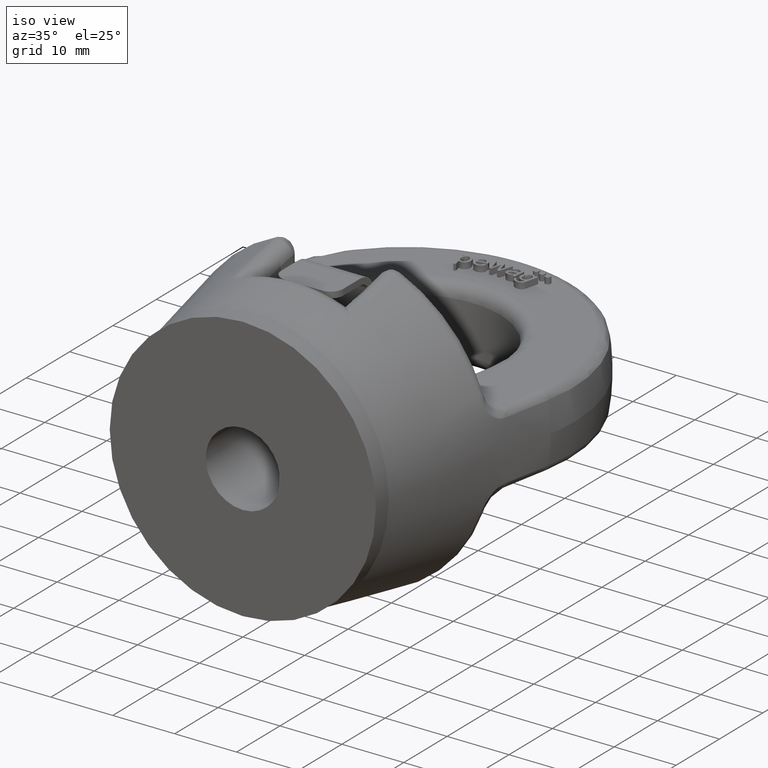
[diagram: clean part render]
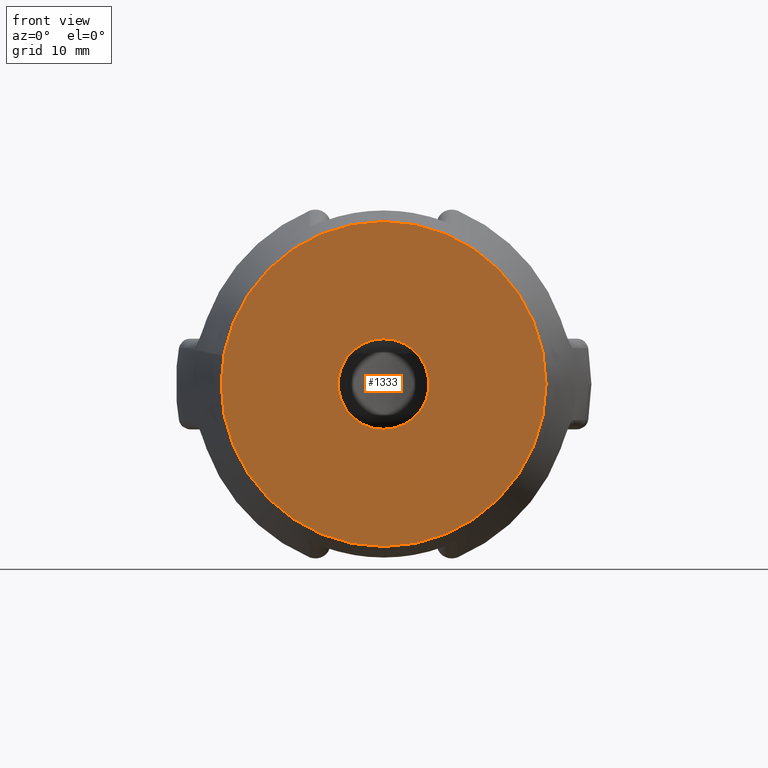
[diagram: tour spotlight — one face highlighted and labeled with its STEP entity id]
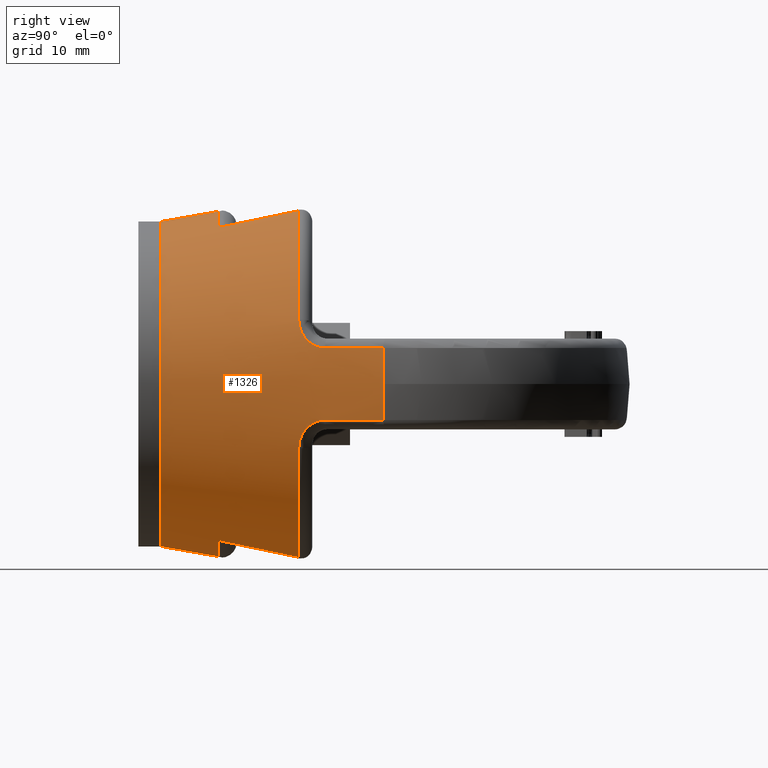
[diagram: tour spotlight — one face highlighted and labeled with its STEP entity id]
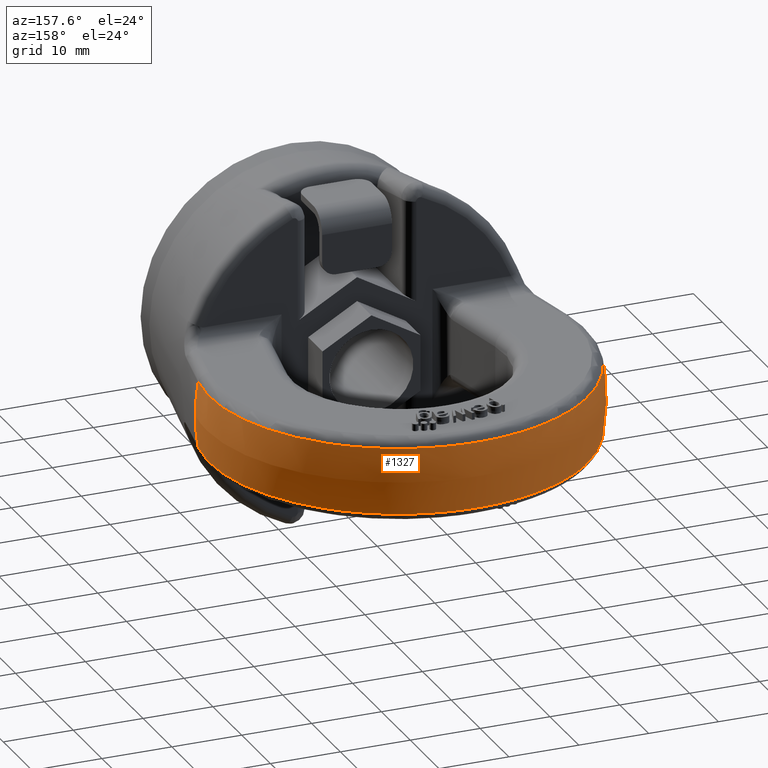
[diagram: tour spotlight — one face highlighted and labeled with its STEP entity id]
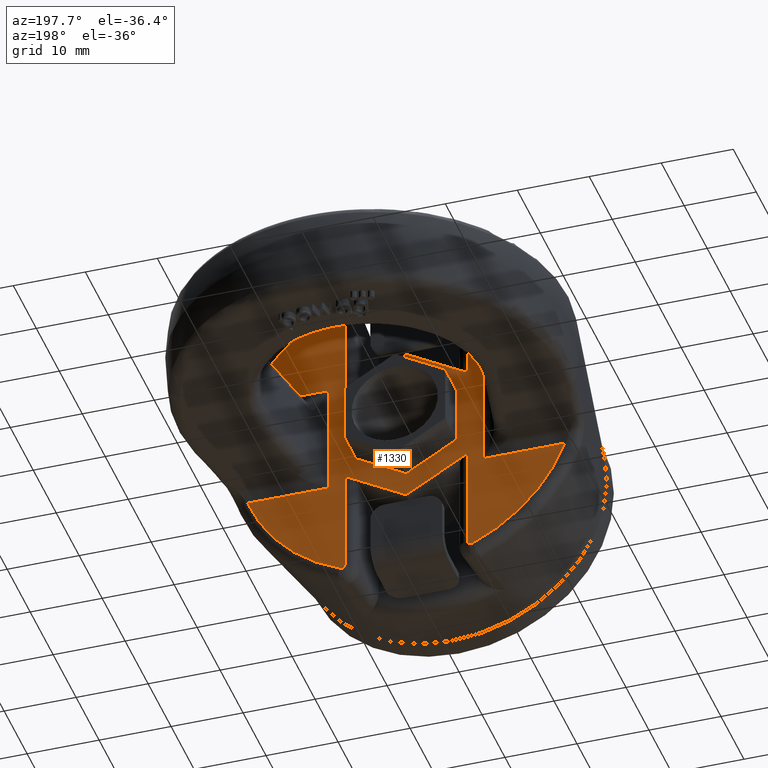
[diagram: tour spotlight — one face highlighted and labeled with its STEP entity id]
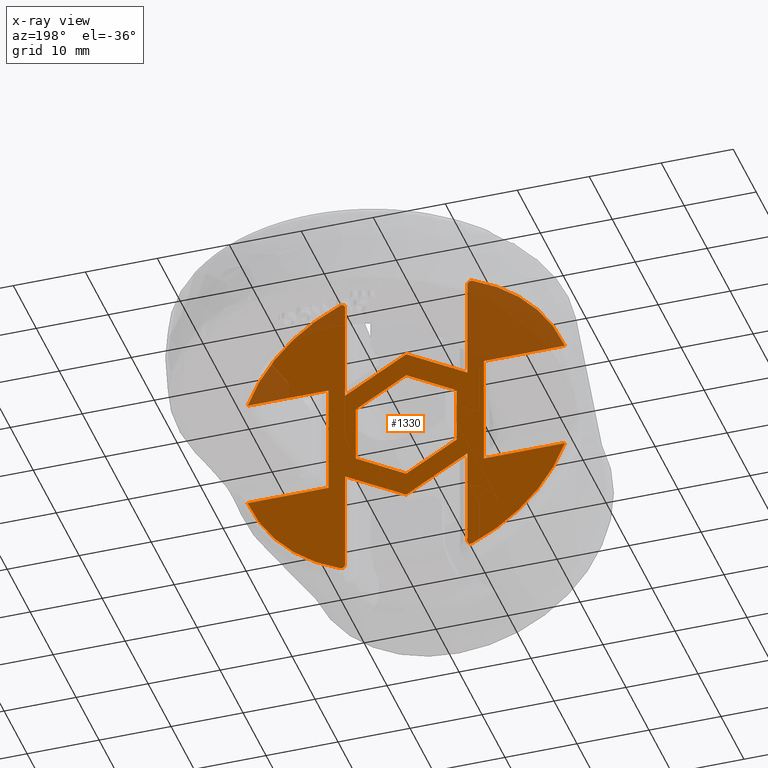
[diagram: x-ray of the same camera — body ghosted, this tour face saturated]
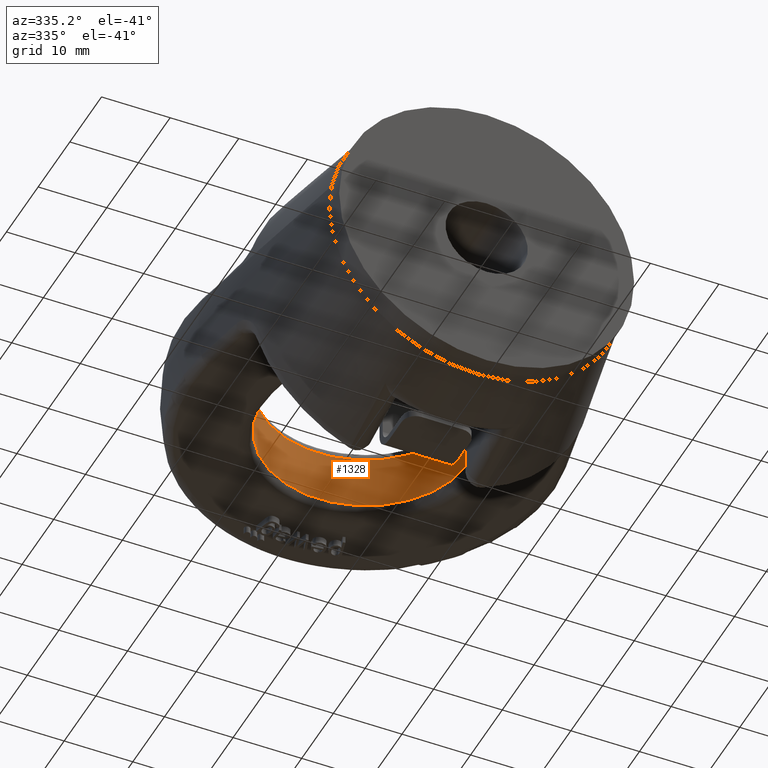
[diagram: tour spotlight — one face highlighted and labeled with its STEP entity id]
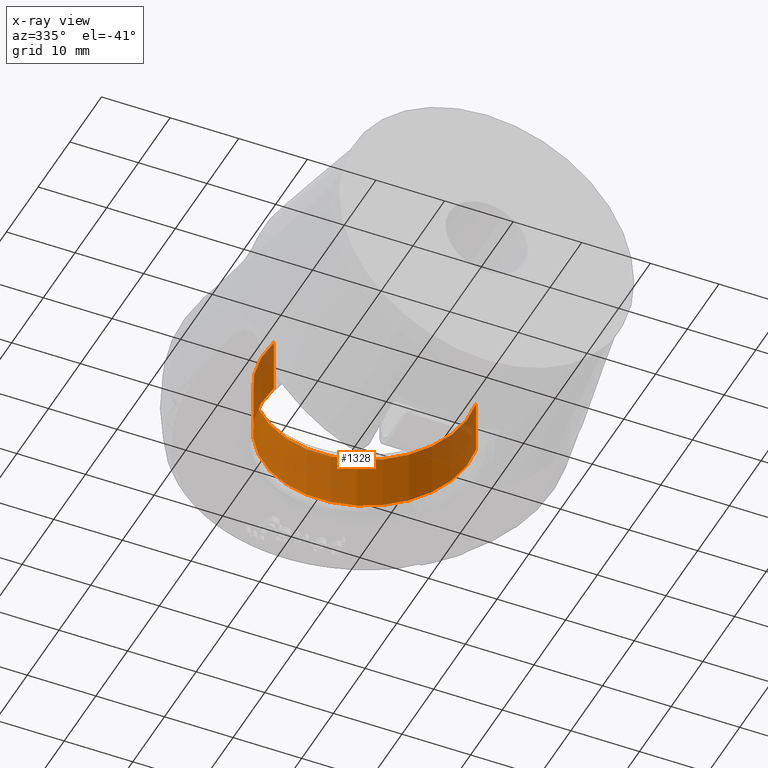
[diagram: x-ray of the same camera — body ghosted, this tour face saturated]
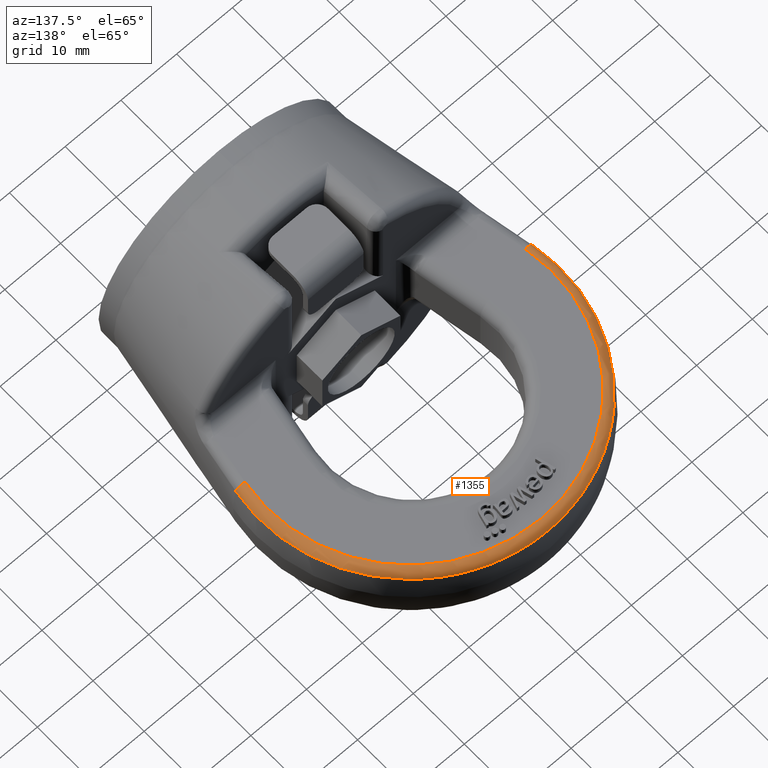
[diagram: tour spotlight — one face highlighted and labeled with its STEP entity id]
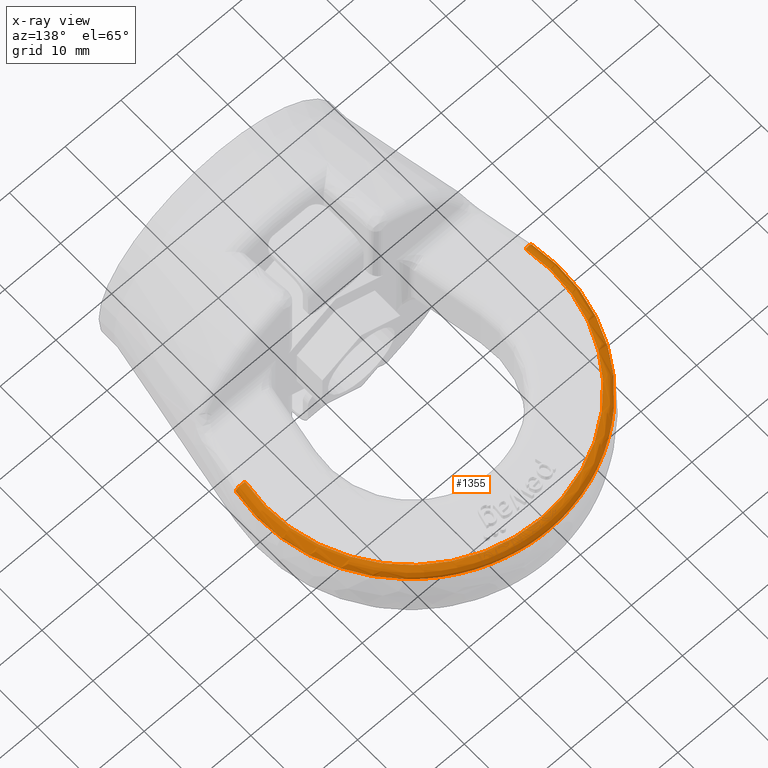
[diagram: x-ray of the same camera — body ghosted, this tour face saturated]
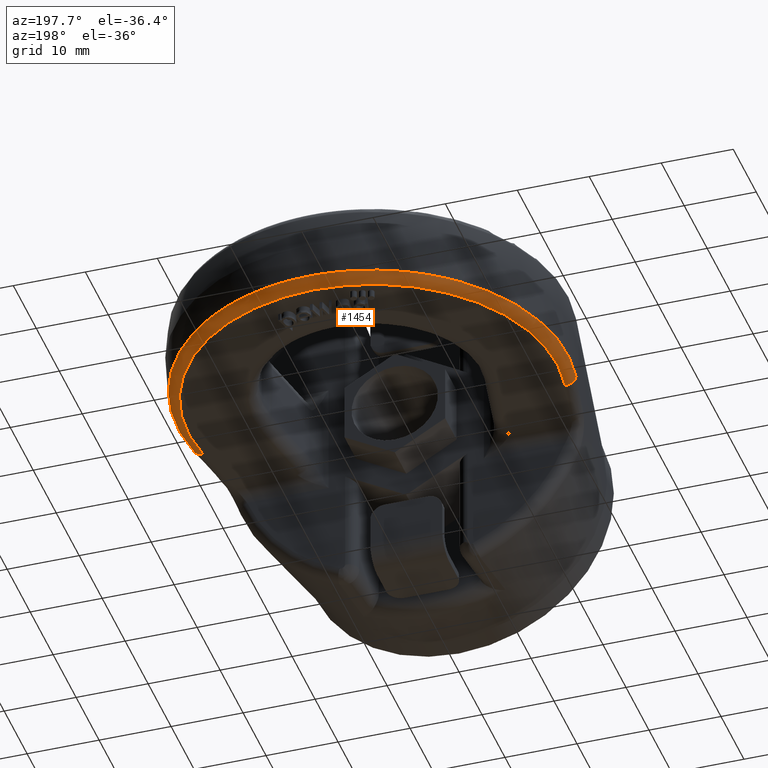
[diagram: tour spotlight — one face highlighted and labeled with its STEP entity id]
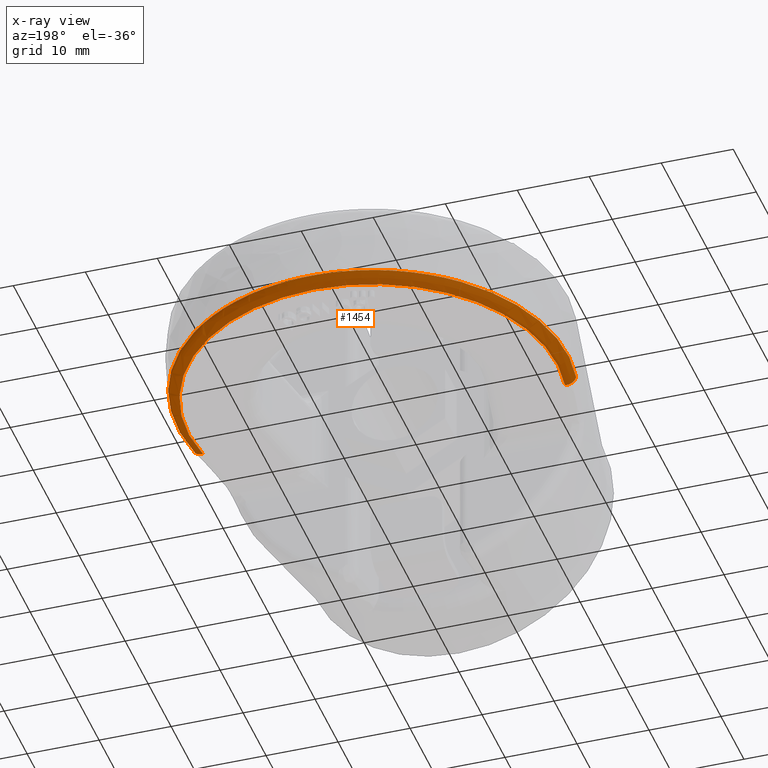
[diagram: x-ray of the same camera — body ghosted, this tour face saturated]
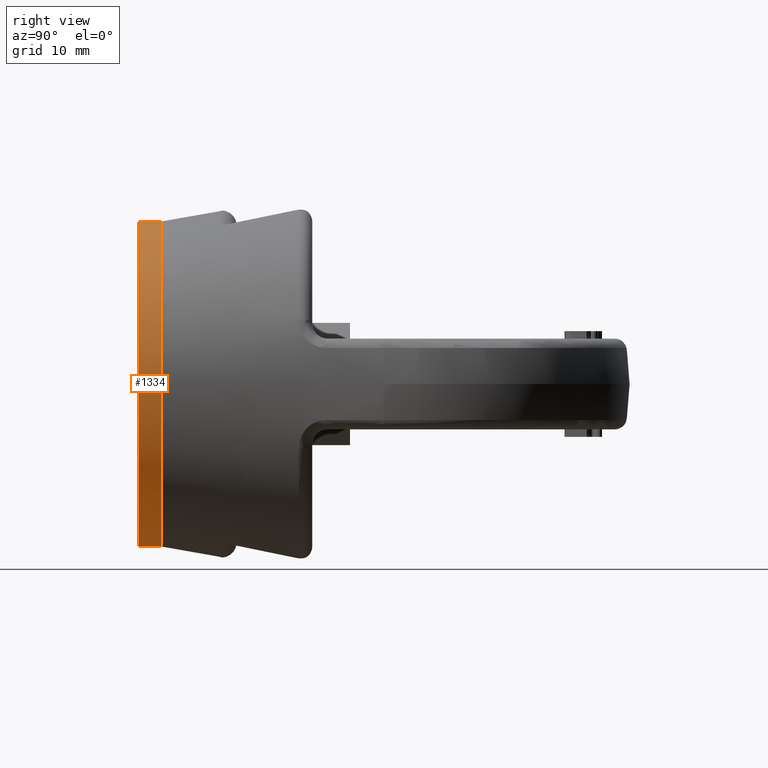
[diagram: tour spotlight — one face highlighted and labeled with its STEP entity id]
A machine part: a face-by-face anatomy tour. The part has 240 B-rep faces; the first image is the clean iso view, then the 8 largest visible faces are spotlighted one at a time (largest first), each with its STEP entity span.

Face 1 — front view, entity #1333. In plain terms, the highlighted planar face has unit normal (0, 1, 0).
Definition (entity closure, byte-faithful):
#1333=ADVANCED_FACE('',(#1783,#1784),#1570,.F.);
#1570=PLANE('',#5140);
#1699=CIRCLE('',#5138,6.);
#1700=CIRCLE('',#5139,21.5000000000001);
#1783=FACE_BOUND('',#1848,.T.);
#1784=FACE_BOUND('',#1849,.T.);
#1848=EDGE_LOOP('',(#2837));
#1849=EDGE_LOOP('',(#2838));
#2837=ORIENTED_EDGE('',*,*,#4387,.T.);
#2838=ORIENTED_EDGE('',*,*,#4388,.F.);
#3997=VERTEX_POINT('',#6888);
#3998=VERTEX_POINT('',#6890);
#4387=EDGE_CURVE('',#3997,#3997,#1699,.T.);
#4388=EDGE_CURVE('',#3998,#3998,#1700,.T.);
#5138=AXIS2_PLACEMENT_3D('',#6887,#5514,#5515);
#5139=AXIS2_PLACEMENT_3D('',#6889,#5516,#5517);
#5140=AXIS2_PLACEMENT_3D('',#6891,#5518,#5519);
#5514=DIRECTION('',(0.,1.,0.));
#5515=DIRECTION('',(0.,0.,1.));
#5516=DIRECTION('',(0.,1.,0.));
#5517=DIRECTION('',(0.,0.,1.));
#5518=DIRECTION('',(0.,1.,0.));
#5519=DIRECTION('',(0.,0.,1.));
#6887=CARTESIAN_POINT('',(0.,0.,0.));
#6888=CARTESIAN_POINT('',(0.,0.,6.));
#6889=CARTESIAN_POINT('',(-1.27403500852703E-13,0.,1.37966262793516E-14));
#6890=CARTESIAN_POINT('',(-1.27403500852703E-13,0.,21.5000000000001));
#6891=CARTESIAN_POINT('',(0.,0.,0.));

Face 2 — right view, entity #1326. In plain terms, the highlighted conical surface has half-angle 10.639 deg.
Definition (entity closure, byte-faithful):
#1104=CONICAL_SURFACE('',#5119,20.936432332518,10.6393524298015);
#1326=ADVANCED_FACE('',(#1779,#1780),#1104,.T.);
#1682=CIRCLE('',#5110,27.02724128799);
#1683=CIRCLE('',#5111,24.9233092101248);
#1684=CIRCLE('',#5112,22.9334807941546);
#1685=CIRCLE('',#5113,24.9233092101248);
#1686=CIRCLE('',#5114,27.02724128799);
#1687=CIRCLE('',#5115,24.9233092101248);
#1688=CIRCLE('',#5116,22.9334807941546);
#1689=CIRCLE('',#5117,24.9233092101248);
#1690=CIRCLE('',#5118,21.5000000000001);
#1779=FACE_BOUND('',#1839,.T.);
#1780=FACE_BOUND('',#1840,.T.);
#1839=EDGE_LOOP('',(#2764,#2765,#2766,#2767,#2768,#2769,#2770,#2771,#2772,
#2773,#2774,#2775,#2776,#2777,#2778,#2779,#2780,#2781,#2782,#2783));
#1840=EDGE_LOOP('',(#2784));
#2764=ORIENTED_EDGE('',*,*,#4319,.T.);
#2765=ORIENTED_EDGE('',*,*,#4320,.T.);
#2766=ORIENTED_EDGE('',*,*,#4321,.T.);
#2767=ORIENTED_EDGE('',*,*,#4322,.T.);
#2768=ORIENTED_EDGE('',*,*,#4323,.T.);
#2769=ORIENTED_EDGE('',*,*,#4324,.T.);
#2770=ORIENTED_EDGE('',*,*,#4325,.T.);
#2771=ORIENTED_EDGE('',*,*,#4326,.T.);
#2772=ORIENTED_EDGE('',*,*,#4327,.T.);
#2773=ORIENTED_EDGE('',*,*,#4328,.T.);
#2774=ORIENTED_EDGE('',*,*,#4329,.T.);
#2775=ORIENTED_EDGE('',*,*,#4330,.T.);
#2776=ORIENTED_EDGE('',*,*,#4331,.T.);
#2777=ORIENTED_EDGE('',*,*,#4332,.T.);
#2778=ORIENTED_EDGE('',*,*,#4333,.T.);
#2779=ORIENTED_EDGE('',*,*,#4334,.T.);
#2780=ORIENTED_EDGE('',*,*,#4335,.T.);
#2781=ORIENTED_EDGE('',*,*,#4336,.T.);
#2782=ORIENTED_EDGE('',*,*,#4337,.T.);
#2783=ORIENTED_EDGE('',*,*,#4338,.T.);
#2784=ORIENTED_EDGE('',*,*,#4339,.F.);
#3934=VERTEX_POINT('',#6564);
#3935=VERTEX_POINT('',#6565);
#3936=VERTEX_POINT('',#6573);
#3937=VERTEX_POINT('',#6590);
#3938=VERTEX_POINT('',#6592);
#3939=VERTEX_POINT('',#6600);
#3940=VERTEX_POINT('',#6602);
#3941=VERTEX_POINT('',#6610);
#3942=VERTEX_POINT('',#6612);
#3943=VERTEX_POINT('',#6629);
#3944=VERTEX_POINT('',#6637);
#3945=VERTEX_POINT('',#6639);
#3946=VERTEX_POINT('',#6647);
#3947=VERTEX_POINT('',#6664);
#3948=VERTEX_POINT('',#6666);
#3949=VERTEX_POINT('',#6674);
#3950=VERTEX_POINT('',#6676);
#3951=VERTEX_POINT('',#6684);
#3952=VERTEX_POINT('',#6686);
#3953=VERTEX_POINT('',#6703);
#3954=VERTEX_POINT('',#6712);
#4319=EDGE_CURVE('',#3934,#3935,#1682,.T.);
#4320=EDGE_CURVE('',#3935,#3936,#4866,.T.);
#4321=EDGE_CURVE('',#3936,#3937,#4867,.T.);
#4322=EDGE_CURVE('',#3937,#3938,#1683,.T.);
#4323=EDGE_CURVE('',#3938,#3939,#4868,.T.);
#4324=EDGE_CURVE('',#3939,#3940,#1684,.T.);
#4325=EDGE_CURVE('',#3940,#3941,#4869,.T.);
#4326=EDGE_CURVE('',#3941,#3942,#1685,.T.);
#4327=EDGE_CURVE('',#3942,#3943,#4870,.T.);
#4328=EDGE_CURVE('',#3943,#3944,#4871,.T.);
#4329=EDGE_CURVE('',#3944,#3945,#1686,.T.);
#4330=EDGE_CURVE('',#3945,#3946,#4872,.T.);
#4331=EDGE_CURVE('',#3946,#3947,#4873,.T.);
#4332=EDGE_CURVE('',#3947,#3948,#1687,.T.);
#4333=EDGE_CURVE('',#3948,#3949,#4874,.T.);
#4334=EDGE_CURVE('',#3949,#3950,#1688,.T.);
#4335=EDGE_CURVE('',#3950,#3951,#4875,.T.);
#4336=EDGE_CURVE('',#3951,#3952,#1689,.T.);
#4337=EDGE_CURVE('',#3952,#3953,#4876,.T.);
#4338=EDGE_CURVE('',#3953,#3934,#4877,.T.);
#4339=EDGE_CURVE('',#3954,#3954,#1690,.T.);
#4866=B_SPLINE_CURVE_WITH_KNOTS('',3,(#6566,#6567,#6568,#6569,#6570,#6571,
#6572),.UNSPECIFIED.,.F.,.F.,(4,3,4),(0.,0.382678019397536,1.),
 .UNSPECIFIED.);
#4867=B_SPLINE_CURVE_WITH_KNOTS('',3,(#6574,#6575,#6576,#6577,#6578,#6579,
#6580,#6581,#6582,#6583,#6584,#6585,#6586,#6587,#6588,#6589),
 .UNSPECIFIED.,.F.,.F.,(4,3,3,3,3,4),(0.,0.0842091804635923,0.3009179089864,
0.52750237567707,0.762399147508869,1.),.UNSPECIFIED.);
#4868=B_SPLINE_CURVE_WITH_KNOTS('',3,(#6593,#6594,#6595,#6596,#6597,#6598,
#6599),.UNSPECIFIED.,.F.,.F.,(4,3,4),(0.,0.34127782446797,1.),
 .UNSPECIFIED.);
#4869=B_SPLINE_CURVE_WITH_KNOTS('',3,(#6603,#6604,#6605,#6606,#6607,#6608,
#6609),.UNSPECIFIED.,.F.,.F.,(4,3,4),(0.,0.658722175532028,1.),
 .UNSPECIFIED.);
#4870=B_SPLINE_CURVE_WITH_KNOTS('',3,(#6613,#6614,#6615,#6616,#6617,#6618,
#6619,#6620,#6621,#6622,#6623,#6624,#6625,#6626,#6627,#6628),
 .UNSPECIFIED.,.F.,.F.,(4,3,3,3,3,4),(0.,0.131475323259483,0.360761867561333,
0.580559920134442,0.791571791654308,1.),.UNSPECIFIED.);
#4871=B_SPLINE_CURVE_WITH_KNOTS('',3,(#6630,#6631,#6632,#6633,#6634,#6635,
#6636),.UNSPECIFIED.,.F.,.F.,(4,3,4),(0.,0.382678020142017,1.),
 .UNSPECIFIED.);
#4872=B_SPLINE_CURVE_WITH_KNOTS('',3,(#6640,#6641,#6642,#6643,#6644,#6645,
#6646),.UNSPECIFIED.,.F.,.F.,(4,3,4),(0.,0.382678019397536,1.),
 .UNSPECIFIED.);
#4873=B_SPLINE_CURVE_WITH_KNOTS('',3,(#6648,#6649,#6650,#6651,#6652,#6653,
#6654,#6655,#6656,#6657,#6658,#6659,#6660,#6661,#6662,#6663),
 .UNSPECIFIED.,.F.,.F.,(4,3,3,3,3,4),(0.,0.0842091804635923,0.3009179089864,
0.52750237567707,0.762399147508869,1.),.UNSPECIFIED.);
#4874=B_SPLINE_CURVE_WITH_KNOTS('',3,(#6667,#6668,#6669,#6670,#6671,#6672,
#6673),.UNSPECIFIED.,.F.,.F.,(4,3,4),(0.,0.34127782446797,1.),
 .UNSPECIFIED.);
#4875=B_SPLINE_CURVE_WITH_KNOTS('',3,(#6677,#6678,#6679,#6680,#6681,#6682,
#6683),.UNSPECIFIED.,.F.,.F.,(4,3,4),(0.,0.658722175532028,1.),
 .UNSPECIFIED.);
#4876=B_SPLINE_CURVE_WITH_KNOTS('',3,(#6687,#6688,#6689,#6690,#6691,#6692,
#6693,#6694,#6695,#6696,#6697,#6698,#6699,#6700,#6701,#6702),
 .UNSPECIFIED.,.F.,.F.,(4,3,3,3,3,4),(0.,0.131475323259483,0.360761867561333,
0.580559920134442,0.791571791654308,1.),.UNSPECIFIED.);
#4877=B_SPLINE_CURVE_WITH_KNOTS('',3,(#6704,#6705,#6706,#6707,#6708,#6709,
#6710),.UNSPECIFIED.,.F.,.F.,(4,3,4),(0.,0.382678020142017,1.),
 .UNSPECIFIED.);
#5110=AXIS2_PLACEMENT_3D('',#6563,#5428,#5429);
#5111=AXIS2_PLACEMENT_3D('',#6591,#5430,#5431);
#5112=AXIS2_PLACEMENT_3D('',#6601,#5432,#5433);
#5113=AXIS2_PLACEMENT_3D('',#6611,#5434,#5435);
#5114=AXIS2_PLACEMENT_3D('',#6638,#5436,#5437);
#5115=AXIS2_PLACEMENT_3D('',#6665,#5438,#5439);
#5116=AXIS2_PLACEMENT_3D('',#6675,#5440,#5441);
#5117=AXIS2_PLACEMENT_3D('',#6685,#5442,#5443);
#5118=AXIS2_PLACEMENT_3D('',#6711,#5444,#5445);
#5119=AXIS2_PLACEMENT_3D('',#6713,#5446,#5447);
#5428=DIRECTION('',(-1.96005385927235E-15,-1.,0.));
#5429=DIRECTION('',(1.,-2.05389631297387E-15,0.));
#5430=DIRECTION('',(6.37234096263326E-16,-1.,1.49298260112514E-30));
#5431=DIRECTION('',(-1.,-6.96024537252098E-16,-2.34291072916505E-15));
#5432=DIRECTION('',(-1.23908819712629E-16,-1.,-2.90307303142896E-31));
#5433=DIRECTION('',(-1.,1.51283051321103E-16,-2.34291072916505E-15));
#5434=DIRECTION('',(6.37234096263326E-16,-1.,1.49298260112514E-30));
#5435=DIRECTION('',(-1.,-6.96024537252098E-16,-2.34291072916505E-15));
#5436=DIRECTION('',(-1.96005385927235E-15,-1.,0.));
#5437=DIRECTION('',(1.,-2.05389631297387E-15,0.));
#5438=DIRECTION('',(-6.37234096263326E-16,-1.,0.));
#5439=DIRECTION('',(1.,-6.96024537252098E-16,0.));
#5440=DIRECTION('',(1.23908819712629E-16,-1.,0.));
#5441=DIRECTION('',(1.,1.51283051321103E-16,0.));
#5442=DIRECTION('',(-6.37234096263326E-16,-1.,0.));
#5443=DIRECTION('',(1.,-6.96024537252098E-16,0.));
#5444=DIRECTION('',(0.,-1.,0.));
#5445=DIRECTION('',(0.,0.,1.));
#5446=DIRECTION('',(1.96005385927235E-15,1.,0.));
#5447=DIRECTION('',(-1.,1.92754141315332E-15,0.));
#6563=CARTESIAN_POINT('',(-6.38531184153958E-14,32.4227735562836,0.));
#6564=CARTESIAN_POINT('',(-26.6048460440907,32.4227735562836,4.75961538461541));
#6565=CARTESIAN_POINT('',(-26.6048460440905,32.4227735562835,-4.75961538461545));
#6566=CARTESIAN_POINT('',(-26.6048460440905,32.4227735562835,-4.75961538461545));
#6567=CARTESIAN_POINT('',(-26.417067359261,31.4405639763957,-4.7614900209571));
#6568=CARTESIAN_POINT('',(-26.2292154171264,30.4583684750334,-4.76340521983318));
#6569=CARTESIAN_POINT('',(-26.0412848433138,29.4761881091049,-4.76536373256603));
#6570=CARTESIAN_POINT('',(-25.7381222176403,27.8917712014177,-4.76852313260649));
#6571=CARTESIAN_POINT('',(-25.434755181654,26.307393607992,-4.77179514673872));
#6572=CARTESIAN_POINT('',(-25.1311581420737,24.7230603757973,-4.77519274887629));
#6573=CARTESIAN_POINT('',(-25.1311581420737,24.7230603757973,-4.77519274887629));
#6574=CARTESIAN_POINT('',(-25.1311581420737,24.7230603757973,-4.77519274887629));
#6575=CARTESIAN_POINT('',(-25.0995717930953,24.5582257567266,-4.77554623666706));
#6576=CARTESIAN_POINT('',(-25.0656330657141,24.3934083264606,-4.78833228549174));
#6577=CARTESIAN_POINT('',(-25.0298617237991,24.2313119244773,-4.81310003874578));
#6578=CARTESIAN_POINT('',(-24.9391055784978,23.8200540900308,-4.87593877201028));
#6579=CARTESIAN_POINT('',(-24.8343926505506,23.4177064878508,-5.01944740523283));
#6580=CARTESIAN_POINT('',(-24.7227085318757,23.0615194538399,-5.22432748025299));
#6581=CARTESIAN_POINT('',(-24.6058951927083,22.6889741241673,-5.43861690632292));
#6582=CARTESIAN_POINT('',(-24.4775575581374,22.3550454694157,-5.72616297651062));
#6583=CARTESIAN_POINT('',(-24.3437188085512,22.0858246769949,-6.05473974232224));
#6584=CARTESIAN_POINT('',(-24.2048792158383,21.8065445336497,-6.39559367648769));
#6585=CARTESIAN_POINT('',(-24.0558463603936,21.5882894345567,-6.79000628049788));
#6586=CARTESIAN_POINT('',(-23.9035190514857,21.4439365747384,-7.20160545230321));
#6587=CARTESIAN_POINT('',(-23.7493277767971,21.2978173291486,-7.61824119159673));
#6588=CARTESIAN_POINT('',(-23.5875511778051,21.2230603757973,-8.06334189652732));
#6589=CARTESIAN_POINT('',(-23.4280002565763,21.2230603757973,-8.50294925078054));
#6590=CARTESIAN_POINT('',(-23.4280002565763,21.2230603757973,-8.50294925078054));
#6591=CARTESIAN_POINT('',(8.58051594575514E-14,21.2230603757973,2.01033828710815E-28));
#6592=CARTESIAN_POINT('',(-9.77057215483511,21.2230603757973,-22.928306997043));
#6593=CARTESIAN_POINT('',(-9.77057215483511,21.2230603757973,-22.928306997043));
#6594=CARTESIAN_POINT('',(-9.77817334054034,20.0175486590907,-22.6789007834092));
#6595=CARTESIAN_POINT('',(-9.78599824172192,18.8121992047466,-22.4287153901405));
#6596=CARTESIAN_POINT('',(-9.79406771798116,17.607032894456,-22.1776600483657));
#6597=CARTESIAN_POINT('',(-9.80964311959758,15.2808659048881,-21.6930824065874));
#6598=CARTESIAN_POINT('',(-9.82612706033226,12.9553731248613,-21.2052788562981));
#6599=CARTESIAN_POINT('',(-9.84369865095256,10.6307471677297,-20.7134289340295));
#6600=CARTESIAN_POINT('',(-9.84369865095256,10.6307471677297,-20.7134289340295));
#6601=CARTESIAN_POINT('',(1.06566663839646E-13,10.6307471677297,2.49676180081231E-28));
#6602=CARTESIAN_POINT('',(9.8436986509527,10.6307471677297,-20.7134289340295));
#6603=CARTESIAN_POINT('',(9.8436986509527,10.6307471677297,-20.7134289340295));
#6604=CARTESIAN_POINT('',(9.8261270603324,12.9553731248613,-21.2052788562981));
#6605=CARTESIAN_POINT('',(9.80964311959765,15.2808659048881,-21.6930824065875));
#6606=CARTESIAN_POINT('',(9.79406771798124,17.607032894456,-22.1776600483657));
#6607=CARTESIAN_POINT('',(9.785998241722,18.8121992047466,-22.4287153901405));
#6608=CARTESIAN_POINT('',(9.77817334054044,20.0175486590907,-22.6789007834092));
#6609=CARTESIAN_POINT('',(9.7705721548352,21.2230603757973,-22.9283069970431));
#6610=CARTESIAN_POINT('',(9.7705721548352,21.2230603757973,-22.9283069970431));
#6611=CARTESIAN_POINT('',(8.58051594575514E-14,21.2230603757973,2.01033828710815E-28));
#6612=CARTESIAN_POINT('',(23.4280002565765,21.2230603757973,-8.50294925078043));
#6613=CARTESIAN_POINT('',(23.4280002565765,21.2230603757973,-8.50294925078043));
#6614=CARTESIAN_POINT('',(23.5170171981704,21.2230603757973,-8.25768271219562));
#6615=CARTESIAN_POINT('',(23.6065186362908,21.246012577626,-8.01152247552628));
#6616=CARTESIAN_POINT('',(23.6946626375297,21.2915808066786,-7.77020554204104));
#6617=CARTESIAN_POINT('',(23.8471122316402,21.3703934079421,-7.35283546529412));
#6618=CARTESIAN_POINT('',(23.9982329206036,21.5194525339421,-6.94202410783912));
#6619=CARTESIAN_POINT('',(24.14076120305,21.731658864615,-6.57013131717041));
#6620=CARTESIAN_POINT('',(24.2773634682263,21.9350421156939,-6.21370102322396));
#6621=CARTESIAN_POINT('',(24.4095964612409,22.2018075293726,-5.88447177033824));
#6622=CARTESIAN_POINT('',(24.5321495944572,22.5153487625422,-5.61292047729242));
#6623=CARTESIAN_POINT('',(24.6497520353432,22.8162240920542,-5.35233884996188));
#6624=CARTESIAN_POINT('',(24.761720368804,23.1683529565434,-5.13844369330724));
#6625=CARTESIAN_POINT('',(24.8626413979718,23.5444321215054,-4.99478266843713));
#6626=CARTESIAN_POINT('',(24.962224082368,23.915523985126,-4.85302677655172));
#6627=CARTESIAN_POINT('',(25.0540833194316,24.3208423467729,-4.77605530531784));
#6628=CARTESIAN_POINT('',(25.1311581420739,24.7230603757973,-4.77519274887617));
#6629=CARTESIAN_POINT('',(25.1311581420739,24.7230603757973,-4.77519274887617));
#6630=CARTESIAN_POINT('',(25.1311581420739,24.7230603757973,-4.77519274887617));
#6631=CARTESIAN_POINT('',(25.3193580093828,25.7051888724532,-4.77308657461195));
#6632=CARTESIAN_POINT('',(25.5074694116488,26.6873344293456,-4.77102869799815));
#6633=CARTESIAN_POINT('',(25.6954986285829,27.6694958073103,-4.76901594303336));
#6634=CARTESIAN_POINT('',(25.9988203811869,29.2538820817508,-4.76576904144308));
#6635=CARTESIAN_POINT('',(26.3019284402128,30.8383095223826,-4.76263947837376));
#6636=CARTESIAN_POINT('',(26.6048460440907,32.4227735562836,-4.75961538461535));
#6637=CARTESIAN_POINT('',(26.6048460440907,32.4227735562836,-4.75961538461535));
#6638=CARTESIAN_POINT('',(-6.38531184153958E-14,32.4227735562836,0.));
#6639=CARTESIAN_POINT('',(26.6048460440906,32.4227735562835,4.75961538461539));
#6640=CARTESIAN_POINT('',(26.6048460440906,32.4227735562835,4.75961538461539));
#6641=CARTESIAN_POINT('',(26.4170673592611,31.4405639763957,4.76149002095704));
#6642=CARTESIAN_POINT('',(26.2292154171264,30.4583684750334,4.76340521983312));
#6643=CARTESIAN_POINT('',(26.0412848433139,29.4761881091049,4.76536373256597));
#6644=CARTESIAN_POINT('',(25.7381222176403,27.8917712014177,4.76852313260643));
#6645=CARTESIAN_POINT('',(25.434755181654,26.307393607992,4.77179514673866));
#6646=CARTESIAN_POINT('',(25.1311581420737,24.7230603757973,4.77519274887623));
#6647=CARTESIAN_POINT('',(25.1311581420737,24.7230603757973,4.77519274887623));
#6648=CARTESIAN_POINT('',(25.1311581420737,24.7230603757973,4.77519274887623));
#6649=CARTESIAN_POINT('',(25.0995717930953,24.5582257567266,4.775546236667));
#6650=CARTESIAN_POINT('',(25.0656330657141,24.3934083264606,4.78833228549168));
#6651=CARTESIAN_POINT('',(25.0298617237991,24.2313119244773,4.81310003874572));
#6652=CARTESIAN_POINT('',(24.9391055784978,23.8200540900308,4.87593877201022));
#6653=CARTESIAN_POINT('',(24.8343926505507,23.4177064878508,5.01944740523278));
#6654=CARTESIAN_POINT('',(24.7227085318757,23.0615194538399,5.22432748025294));
#6655=CARTESIAN_POINT('',(24.6058951927083,22.6889741241673,5.43861690632286));
#6656=CARTESIAN_POINT('',(24.4775575581374,22.3550454694157,5.72616297651056));
#6657=CARTESIAN_POINT('',(24.3437188085513,22.0858246769949,6.05473974232218));
#6658=CARTESIAN_POINT('',(24.2048792158383,21.8065445336497,6.39559367648763));
#6659=CARTESIAN_POINT('',(24.0558463603936,21.5882894345567,6.79000628049783));
#6660=CARTESIAN_POINT('',(23.9035190514857,21.4439365747384,7.20160545230315));
#6661=CARTESIAN_POINT('',(23.7493277767972,21.2978173291486,7.61824119159667));
#6662=CARTESIAN_POINT('',(23.5875511778051,21.2230603757973,8.06334189652727));
#6663=CARTESIAN_POINT('',(23.4280002565763,21.2230603757973,8.50294925078048));
#6664=CARTESIAN_POINT('',(23.4280002565763,21.2230603757973,8.50294925078048));
#6665=CARTESIAN_POINT('',(-8.58051594575514E-14,21.2230603757973,0.));
#6666=CARTESIAN_POINT('',(9.77057215483516,21.2230603757973,22.928306997043));
#6667=CARTESIAN_POINT('',(9.77057215483516,21.2230603757973,22.928306997043));
#6668=CARTESIAN_POINT('',(9.77817334054039,20.0175486590907,22.6789007834092));
#6669=CARTESIAN_POINT('',(9.78599824172197,18.8121992047466,22.4287153901405));
#6670=CARTESIAN_POINT('',(9.79406771798121,17.607032894456,22.1776600483657));
#6671=CARTESIAN_POINT('',(9.80964311959763,15.2808659048881,21.6930824065874));
#6672=CARTESIAN_POINT('',(9.82612706033231,12.9553731248613,21.2052788562981));
#6673=CARTESIAN_POINT('',(9.84369865095261,10.6307471677297,20.7134289340294));
#6674=CARTESIAN_POINT('',(9.84369865095261,10.6307471677297,20.7134289340294));
#6675=CARTESIAN_POINT('',(-1.06566663839646E-13,10.6307471677297,0.));
#6676=CARTESIAN_POINT('',(-9.84369865095265,10.6307471677297,20.7134289340295));
#6677=CARTESIAN_POINT('',(-9.84369865095265,10.6307471677297,20.7134289340295));
#6678=CARTESIAN_POINT('',(-9.82612706033235,12.9553731248613,21.2052788562982));
#6679=CARTESIAN_POINT('',(-9.8096431195976,15.2808659048881,21.6930824065875));
#6680=CARTESIAN_POINT('',(-9.79406771798119,17.607032894456,22.1776600483658));
#6681=CARTESIAN_POINT('',(-9.78599824172194,18.8121992047466,22.4287153901406));
#6682=CARTESIAN_POINT('',(-9.77817334054038,20.0175486590907,22.6789007834093));
#6683=CARTESIAN_POINT('',(-9.77057215483515,21.2230603757973,22.9283069970431));
#6684=CARTESIAN_POINT('',(-9.77057215483515,21.2230603757973,22.9283069970431));
#6685=CARTESIAN_POINT('',(-8.58051594575514E-14,21.2230603757973,0.));
#6686=CARTESIAN_POINT('',(-23.4280002565765,21.2230603757973,8.50294925078048));
#6687=CARTESIAN_POINT('',(-23.4280002565765,21.2230603757973,8.50294925078048));
#6688=CARTESIAN_POINT('',(-23.5170171981704,21.2230603757973,8.25768271219567));
#6689=CARTESIAN_POINT('',(-23.6065186362908,21.246012577626,8.01152247552633));
#6690=CARTESIAN_POINT('',(-23.6946626375297,21.2915808066786,7.77020554204109));
#6691=CARTESIAN_POINT('',(-23.8471122316402,21.3703934079421,7.35283546529417));
#6692=CARTESIAN_POINT('',(-23.9982329206035,21.5194525339421,6.94202410783917));
#6693=CARTESIAN_POINT('',(-24.14076120305,21.731658864615,6.57013131717047));
#6694=CARTESIAN_POINT('',(-24.2773634682263,21.9350421156939,6.21370102322401));
#6695=CARTESIAN_POINT('',(-24.4095964612409,22.2018075293726,5.8844717703383));
#6696=CARTESIAN_POINT('',(-24.5321495944572,22.5153487625422,5.61292047729248));
#6697=CARTESIAN_POINT('',(-24.6497520353432,22.8162240920542,5.35233884996194));
#6698=CARTESIAN_POINT('',(-24.761720368804,23.1683529565434,5.1384436933073));
#6699=CARTESIAN_POINT('',(-24.8626413979718,23.5444321215054,4.99478266843719));
#6700=CARTESIAN_POINT('',(-24.962224082368,23.915523985126,4.85302677655177));
#6701=CARTESIAN_POINT('',(-25.0540833194316,24.3208423467729,4.7760553053179));
#6702=CARTESIAN_POINT('',(-25.1311581420739,24.7230603757973,4.77519274887623));
#6703=CARTESIAN_POINT('',(-25.1311581420739,24.7230603757973,4.77519274887623));
#6704=CARTESIAN_POINT('',(-25.1311581420739,24.7230603757973,4.77519274887623));
#6705=CARTESIAN_POINT('',(-25.3193580093828,25.7051888724532,4.77308657461201));
#6706=CARTESIAN_POINT('',(-25.5074694116488,26.6873344293456,4.77102869799821));
#6707=CARTESIAN_POINT('',(-25.6954986285829,27.6694958073103,4.76901594303342));
#6708=CARTESIAN_POINT('',(-25.9988203811869,29.2538820817508,4.76576904144314));
#6709=CARTESIAN_POINT('',(-26.3019284402127,30.8383095223826,4.76263947837382));
#6710=CARTESIAN_POINT('',(-26.6048460440907,32.4227735562836,4.75961538461541));
#6711=CARTESIAN_POINT('',(-1.27403500852703E-13,3.,1.37966262793516E-14));
#6712=CARTESIAN_POINT('',(-1.27403500852703E-13,3.,21.5000000000001));
#6713=CARTESIAN_POINT('',(-1.27403500852703E-13,4.16333634234434E-14,0.));

Face 3 — auxiliary view, entity #1327. In plain terms, the highlighted spherical surface has radius 27.5 mm.
Definition (entity closure, byte-faithful):
#1103=SPHERICAL_SURFACE('',#5122,27.5);
#1107=FACE_OUTER_BOUND('',#1841,.T.);
#1327=ADVANCED_FACE('',(#1107),#1103,.T.);
#1682=CIRCLE('',#5110,27.02724128799);
#1686=CIRCLE('',#5114,27.02724128799);
#1691=CIRCLE('',#5120,27.0849785192925);
#1692=CIRCLE('',#5121,27.0849785192925);
#1841=EDGE_LOOP('',(#2785,#2786,#2787,#2788));
#2785=ORIENTED_EDGE('',*,*,#4319,.F.);
#2786=ORIENTED_EDGE('',*,*,#4340,.T.);
#2787=ORIENTED_EDGE('',*,*,#4329,.F.);
#2788=ORIENTED_EDGE('',*,*,#4341,.T.);
#3934=VERTEX_POINT('',#6564);
#3935=VERTEX_POINT('',#6565);
#3944=VERTEX_POINT('',#6637);
#3945=VERTEX_POINT('',#6639);
#4319=EDGE_CURVE('',#3934,#3935,#1682,.T.);
#4329=EDGE_CURVE('',#3944,#3945,#1686,.T.);
#4340=EDGE_CURVE('',#3934,#3945,#1691,.T.);
#4341=EDGE_CURVE('',#3944,#3935,#1692,.T.);
#5110=AXIS2_PLACEMENT_3D('',#6563,#5428,#5429);
#5114=AXIS2_PLACEMENT_3D('',#6638,#5436,#5437);
#5120=AXIS2_PLACEMENT_3D('',#6714,#5448,#5449);
#5121=AXIS2_PLACEMENT_3D('',#6715,#5450,#5451);
#5122=AXIS2_PLACEMENT_3D('',#6716,#5452,#5453);
#5428=DIRECTION('',(-1.96005385927235E-15,-1.,0.));
#5429=DIRECTION('',(1.,-2.05389631297387E-15,0.));
#5436=DIRECTION('',(-1.96005385927235E-15,-1.,0.));
#5437=DIRECTION('',(1.,-2.05389631297387E-15,0.));
#5448=DIRECTION('',(0.,-1.33440267382831E-16,-1.));
#5449=DIRECTION('',(0.,1.,-1.28094875522325E-16));
#5450=DIRECTION('',(-2.34291072916505E-15,-1.33440267382831E-16,1.));
#5451=DIRECTION('',(-2.84427760282757E-31,1.,1.28094875522325E-16));
#5452=DIRECTION('',(-1.89882151931499E-15,-1.,0.));
#5453=DIRECTION('',(1.,-2.01858731750028E-15,0.));
#6563=CARTESIAN_POINT('',(-6.38531184153958E-14,32.4227735562836,0.));
#6564=CARTESIAN_POINT('',(-26.6048460440907,32.4227735562836,4.75961538461541));
#6565=CARTESIAN_POINT('',(-26.6048460440905,32.4227735562835,-4.75961538461545));
#6637=CARTESIAN_POINT('',(26.6048460440907,32.4227735562836,-4.75961538461535));
#6638=CARTESIAN_POINT('',(-6.38531184153958E-14,32.4227735562836,0.));
#6639=CARTESIAN_POINT('',(26.6048460440906,32.4227735562835,4.75961538461539));
#6714=CARTESIAN_POINT('',(0.,37.5,4.75961538461539));
#6715=CARTESIAN_POINT('',(1.11513539513144E-14,37.5,-4.75961538461539));
#6716=CARTESIAN_POINT('',(0.,37.5,0.));

Face 4 — auxiliary view, entity #1330. An x-ray twin of the same camera follows (body ghosted, this face saturated) — the face is partly hidden behind the body. In plain terms, the highlighted planar face has unit normal (0, 1, 0).
Definition (entity closure, byte-faithful):
#1330=ADVANCED_FACE('',(#1781,#1782),#1567,.T.);
#1567=PLANE('',#5133);
#1695=CIRCLE('',#5129,23.4490960489617);
#1696=CIRCLE('',#5130,23.4490960489617);
#1697=CIRCLE('',#5131,23.4490960489617);
#1698=CIRCLE('',#5132,23.4490960489617);
#1781=FACE_BOUND('',#1844,.T.);
#1782=FACE_BOUND('',#1845,.T.);
#1844=EDGE_LOOP('',(#2799,#2800,#2801,#2802,#2803,#2804,#2805,#2806,#2807,
#2808,#2809,#2810,#2811,#2812,#2813,#2814,#2815,#2816,#2817,#2818,#2819,
#2820));
#1845=EDGE_LOOP('',(#2821,#2822,#2823,#2824,#2825,#2826));
#2142=LINE('',#6736,#2412);
#2143=LINE('',#6739,#2413);
#2144=LINE('',#6763,#2414);
#2145=LINE('',#6765,#2415);
#2146=LINE('',#6767,#2416);
#2147=LINE('',#6769,#2417);
#2148=LINE('',#6793,#2418);
#2149=LINE('',#6795,#2419);
#2150=LINE('',#6797,#2420);
#2151=LINE('',#6821,#2421);
#2152=LINE('',#6823,#2422);
#2153=LINE('',#6825,#2423);
#2154=LINE('',#6827,#2424);
#2155=LINE('',#6851,#2425);
#2156=LINE('',#6852,#2426);
#2157=LINE('',#6855,#2427);
#2158=LINE('',#6857,#2428);
#2159=LINE('',#6859,#2429);
#2160=LINE('',#6861,#2430);
#2161=LINE('',#6863,#2431);
#2412=VECTOR('',#5471,1.);
#2413=VECTOR('',#5472,1.);
#2414=VECTOR('',#5475,1.);
#2415=VECTOR('',#5476,1.);
#2416=VECTOR('',#5477,1.);
#2417=VECTOR('',#5478,1.);
#2418=VECTOR('',#5481,1.);
#2419=VECTOR('',#5482,1.);
#2420=VECTOR('',#5483,1.);
#2421=VECTOR('',#5486,1.);
#2422=VECTOR('',#5487,1.);
#2423=VECTOR('',#5488,1.);
#2424=VECTOR('',#5489,1.);
#2425=VECTOR('',#5492,1.);
#2426=VECTOR('',#5493,1.);
#2427=VECTOR('',#5494,1.);
#2428=VECTOR('',#5495,1.);
#2429=VECTOR('',#5496,1.);
#2430=VECTOR('',#5497,1.);
#2431=VECTOR('',#5498,1.);
#2799=ORIENTED_EDGE('',*,*,#4351,.T.);
#2800=ORIENTED_EDGE('',*,*,#4352,.T.);
#2801=ORIENTED_EDGE('',*,*,#4353,.T.);
#2802=ORIENTED_EDGE('',*,*,#4354,.T.);
#2803=ORIENTED_EDGE('',*,*,#4355,.T.);
#2804=ORIENTED_EDGE('',*,*,#4356,.T.);
#2805=ORIENTED_EDGE('',*,*,#4357,.T.);
#2806=ORIENTED_EDGE('',*,*,#4358,.T.);
#2807=ORIENTED_EDGE('',*,*,#4359,.T.);
#2808=ORIENTED_EDGE('',*,*,#4360,.T.);
#2809=ORIENTED_EDGE('',*,*,#4361,.T.);
#2810=ORIENTED_EDGE('',*,*,#4362,.T.);
#2811=ORIENTED_EDGE('',*,*,#4363,.T.);
#2812=ORIENTED_EDGE('',*,*,#4364,.T.);
#2813=ORIENTED_EDGE('',*,*,#4365,.T.);
#2814=ORIENTED_EDGE('',*,*,#4366,.T.);
#2815=ORIENTED_EDGE('',*,*,#4367,.T.);
#2816=ORIENTED_EDGE('',*,*,#4368,.T.);
#2817=ORIENTED_EDGE('',*,*,#4369,.T.);
#2818=ORIENTED_EDGE('',*,*,#4370,.T.);
#2819=ORIENTED_EDGE('',*,*,#4371,.T.);
#2820=ORIENTED_EDGE('',*,*,#4372,.T.);
#2821=ORIENTED_EDGE('',*,*,#4373,.T.);
#2822=ORIENTED_EDGE('',*,*,#4374,.T.);
#2823=ORIENTED_EDGE('',*,*,#4375,.T.);
#2824=ORIENTED_EDGE('',*,*,#4376,.T.);
#2825=ORIENTED_EDGE('',*,*,#4377,.F.);
#2826=ORIENTED_EDGE('',*,*,#4378,.T.);
#3963=VERTEX_POINT('',#6737);
#3964=VERTEX_POINT('',#6738);
#3965=VERTEX_POINT('',#6740);
#3966=VERTEX_POINT('',#6742);
#3967=VERTEX_POINT('',#6762);
#3968=VERTEX_POINT('',#6764);
#3969=VERTEX_POINT('',#6766);
#3970=VERTEX_POINT('',#6768);
#3971=VERTEX_POINT('',#6770);
#3972=VERTEX_POINT('',#6790);
#3973=VERTEX_POINT('',#6792);
#3974=VERTEX_POINT('',#6794);
#3975=VERTEX_POINT('',#6796);
#3976=VERTEX_POINT('',#6798);
#3977=VERTEX_POINT('',#6800);
#3978=VERTEX_POINT('',#6820);
#3979=VERTEX_POINT('',#6822);
#3980=VERTEX_POINT('',#6824);
#3981=VERTEX_POINT('',#6826);
#3982=VERTEX_POINT('',#6828);
#3983=VERTEX_POINT('',#6848);
#3984=VERTEX_POINT('',#6850);
#3985=VERTEX_POINT('',#6853);
#3986=VERTEX_POINT('',#6854);
#3987=VERTEX_POINT('',#6856);
#3988=VERTEX_POINT('',#6858);
#3989=VERTEX_POINT('',#6860);
#3990=VERTEX_POINT('',#6862);
#4351=EDGE_CURVE('',#3963,#3964,#2142,.T.);
#4352=EDGE_CURVE('',#3964,#3965,#2143,.T.);
#4353=EDGE_CURVE('',#3965,#3966,#1695,.T.);
#4354=EDGE_CURVE('',#3966,#3967,#4878,.T.);
#4355=EDGE_CURVE('',#3967,#3968,#2144,.T.);
#4356=EDGE_CURVE('',#3968,#3969,#2145,.T.);
#4357=EDGE_CURVE('',#3969,#3970,#2146,.T.);
#4358=EDGE_CURVE('',#3970,#3971,#2147,.T.);
#4359=EDGE_CURVE('',#3971,#3972,#4879,.T.);
#4360=EDGE_CURVE('',#3972,#3973,#1696,.T.);
#4361=EDGE_CURVE('',#3973,#3974,#2148,.T.);
#4362=EDGE_CURVE('',#3974,#3975,#2149,.T.);
#4363=EDGE_CURVE('',#3975,#3976,#2150,.T.);
#4364=EDGE_CURVE('',#3976,#3977,#1697,.T.);
#4365=EDGE_CURVE('',#3977,#3978,#4880,.T.);
#4366=EDGE_CURVE('',#3978,#3979,#2151,.T.);
#4367=EDGE_CURVE('',#3979,#3980,#2152,.T.);
#4368=EDGE_CURVE('',#3980,#3981,#2153,.T.);
#4369=EDGE_CURVE('',#3981,#3982,#2154,.T.);
#4370=EDGE_CURVE('',#3982,#3983,#4881,.T.);
#4371=EDGE_CURVE('',#3983,#3984,#1698,.T.);
#4372=EDGE_CURVE('',#3984,#3963,#2155,.T.);
#4373=EDGE_CURVE('',#3985,#3986,#2156,.T.);
#4374=EDGE_CURVE('',#3986,#3987,#2157,.T.);
#4375=EDGE_CURVE('',#3987,#3988,#2158,.T.);
#4376=EDGE_CURVE('',#3988,#3989,#2159,.T.);
#4377=EDGE_CURVE('',#3990,#3989,#2160,.T.);
#4378=EDGE_CURVE('',#3990,#3985,#2161,.T.);
#4878=B_SPLINE_CURVE_WITH_KNOTS('',3,(#6743,#6744,#6745,#6746,#6747,#6748,
#6749,#6750,#6751,#6752,#6753,#6754,#6755,#6756,#6757,#6758,#6759,#6760,
#6761),.UNSPECIFIED.,.F.,.F.,(4,3,3,3,3,3,4),(0.,0.167141684819178,0.334316162967375,
0.5011712834763,0.669655817511863,0.841261362139217,1.),.UNSPECIFIED.);
#4879=B_SPLINE_CURVE_WITH_KNOTS('',3,(#6771,#6772,#6773,#6774,#6775,#6776,
#6777,#6778,#6779,#6780,#6781,#6782,#6783,#6784,#6785,#6786,#6787,#6788,
#6789),.UNSPECIFIED.,.F.,.F.,(4,3,3,3,3,3,4),(0.,0.176448484069653,0.353000484687531,
0.52785517638227,0.699240462938804,0.867473698216768,1.),.UNSPECIFIED.);
#4880=B_SPLINE_CURVE_WITH_KNOTS('',3,(#6801,#6802,#6803,#6804,#6805,#6806,
#6807,#6808,#6809,#6810,#6811,#6812,#6813,#6814,#6815,#6816,#6817,#6818,
#6819),.UNSPECIFIED.,.F.,.F.,(4,3,3,3,3,3,4),(0.,0.167141684819178,0.334316162967375,
0.5011712834763,0.669655817511863,0.841261362139217,1.),.UNSPECIFIED.);
#4881=B_SPLINE_CURVE_WITH_KNOTS('',3,(#6829,#6830,#6831,#6832,#6833,#6834,
#6835,#6836,#6837,#6838,#6839,#6840,#6841,#6842,#6843,#6844,#6845,#6846,
#6847),.UNSPECIFIED.,.F.,.F.,(4,3,3,3,3,3,4),(0.,0.176448484069653,0.35300048468753,
0.52785517638227,0.699240462938804,0.867473698216768,1.),.UNSPECIFIED.);
#5129=AXIS2_PLACEMENT_3D('',#6741,#5473,#5474);
#5130=AXIS2_PLACEMENT_3D('',#6791,#5479,#5480);
#5131=AXIS2_PLACEMENT_3D('',#6799,#5484,#5485);
#5132=AXIS2_PLACEMENT_3D('',#6849,#5490,#5491);
#5133=AXIS2_PLACEMENT_3D('',#6864,#5499,#5500);
#5471=DIRECTION('',(0.,0.,-1.));
#5472=DIRECTION('',(1.,6.37234096263326E-16,2.34291072916505E-15));
#5473=DIRECTION('',(-6.37234096263326E-16,1.,-1.49298260112514E-30));
#5474=DIRECTION('',(1.,5.91826131755255E-16,2.34291072916505E-15));
#5475=DIRECTION('',(-2.34291072916505E-15,0.,1.));
#5476=DIRECTION('',(-0.866025403784438,0.,-0.500000000000001));
#5477=DIRECTION('',(-0.86602540378444,0.,0.499999999999997));
#5478=DIRECTION('',(2.34291072916505E-15,0.,-1.));
#5479=DIRECTION('',(-6.37234096263326E-16,1.,-1.49298260112514E-30));
#5480=DIRECTION('',(1.,5.91826131755255E-16,2.34291072916505E-15));
#5481=DIRECTION('',(1.,6.37234096263326E-16,2.34291072916505E-15));
#5482=DIRECTION('',(0.,0.,1.));
#5483=DIRECTION('',(-1.,6.37234096263326E-16,-8.50326881908351E-32));
#5484=DIRECTION('',(6.37234096263326E-16,1.,0.));
#5485=DIRECTION('',(-1.,5.91826131755255E-16,0.));
#5486=DIRECTION('',(0.,0.,-1.));
#5487=DIRECTION('',(0.866025403784439,0.,0.499999999999999));
#5488=DIRECTION('',(0.866025403784439,0.,-0.499999999999999));
#5489=DIRECTION('',(0.,0.,1.));
#5490=DIRECTION('',(6.37234096263326E-16,1.,0.));
#5491=DIRECTION('',(-1.,5.91826131755255E-16,0.));
#5492=DIRECTION('',(-1.,6.37234096263326E-16,-8.50326881908351E-32));
#5493=DIRECTION('',(0.866025403784438,0.,0.500000000000001));
#5494=DIRECTION('',(0.,0.,1.));
#5495=DIRECTION('',(-0.866025403784439,0.,0.499999999999999));
#5496=DIRECTION('',(-0.866025403784439,0.,-0.499999999999999));
#5497=DIRECTION('',(0.,0.,1.));
#5498=DIRECTION('',(0.86602540378444,0.,-0.499999999999997));
#5499=DIRECTION('',(6.37234096263326E-16,1.,0.));
#5500=DIRECTION('',(-1.,6.38378239159465E-16,0.));
#6736=CARTESIAN_POINT('',(10.7852685786772,23.,0.));
#6737=CARTESIAN_POINT('',(10.7852685786772,23.,8.00000000000001));
#6738=CARTESIAN_POINT('',(10.7852685786773,23.,-7.99999999999998));
#6739=CARTESIAN_POINT('',(12.4445406677045,23.,-7.99999999999998));
#6740=CARTESIAN_POINT('',(22.042234585301,23.,-7.99999999999995));
#6741=CARTESIAN_POINT('',(1.46282147367041E-13,23.,3.42726012551544E-28));
#6742=CARTESIAN_POINT('',(9.19264303870684,23.,-21.572098170469));
#6743=CARTESIAN_POINT('',(9.19264303870684,23.,-21.572098170469));
#6744=CARTESIAN_POINT('',(9.14207664823793,23.,-21.5936463190847));
#6745=CARTESIAN_POINT('',(9.08710911625214,23.,-21.6068131804628));
#6746=CARTESIAN_POINT('',(9.03226222477845,23.,-21.6104327176563));
#6747=CARTESIAN_POINT('',(8.97740757438708,23.,-21.6140527668878));
#6748=CARTESIAN_POINT('',(8.92117035530604,23.,-21.6082188804487));
#6749=CARTESIAN_POINT('',(8.8682168321104,23.,-21.5934519644821));
#6750=CARTESIAN_POINT('',(8.81535151540876,23.,-21.5787096462722));
#6751=CARTESIAN_POINT('',(8.76431945529388,23.,-21.5546756432012));
#6752=CARTESIAN_POINT('',(8.71920461866118,23.,-21.5234229765666));
#6753=CARTESIAN_POINT('',(8.67364586999442,23.,-21.4918627961328));
#6754=CARTESIAN_POINT('',(8.63288783332319,23.,-21.4521054311223));
#6755=CARTESIAN_POINT('',(8.60006049788457,23.,-21.4074510851178));
#6756=CARTESIAN_POINT('',(8.56663016117944,23.,-21.3619764889517));
#6757=CARTESIAN_POINT('',(8.5405169972428,23.,-21.3102081742047));
#6758=CARTESIAN_POINT('',(8.52367206782388,23.,-21.2563400513345));
#6759=CARTESIAN_POINT('',(8.50805705008478,23.,-21.2064050428064));
#6760=CARTESIAN_POINT('',(8.50000000000005,23.,-21.1534963253129));
#6761=CARTESIAN_POINT('',(8.50000000000005,23.,-21.1011767892322));
#6762=CARTESIAN_POINT('',(8.50000000000005,23.,-21.1011767892322));
#6763=CARTESIAN_POINT('',(8.50000000000007,23.,-30.25));
#6764=CARTESIAN_POINT('',(8.50000000000001,23.,-6.63952809568067));
#6765=CARTESIAN_POINT('',(5.00000000000001,23.,-8.66025403784437));
#6766=CARTESIAN_POINT('',(2.8122236533157E-14,23.,-11.5470053837925));
#6767=CARTESIAN_POINT('',(-4.99999999999997,23.,-8.66025403784439));
#6768=CARTESIAN_POINT('',(-8.49999999999999,23.,-6.63952809568071));
#6769=CARTESIAN_POINT('',(-8.49999999999993,23.,-30.2500000000001));
#6770=CARTESIAN_POINT('',(-8.49999999999995,23.,-21.1011767892322));
#6771=CARTESIAN_POINT('',(-8.49999999999995,23.,-21.1011767892322));
#6772=CARTESIAN_POINT('',(-8.49999999999995,23.,-21.1591855337876));
#6773=CARTESIAN_POINT('',(-8.50995438826831,23.,-21.21799575369));
#6774=CARTESIAN_POINT('',(-8.52910650341872,23.,-21.2727516751064));
#6775=CARTESIAN_POINT('',(-8.54826486290353,23.,-21.3275254490827));
#6776=CARTESIAN_POINT('',(-8.57717689332905,23.,-21.3797685255845));
#6777=CARTESIAN_POINT('',(-8.61354630440936,23.,-21.4249843965971));
#6778=CARTESIAN_POINT('',(-8.64956209591393,23.,-21.4697606339547));
#6779=CARTESIAN_POINT('',(-8.69392627428744,23.,-21.5089026375681));
#6780=CARTESIAN_POINT('',(-8.74294466406527,23.,-21.5388900704891));
#6781=CARTESIAN_POINT('',(-8.79100153651743,23.,-21.5682892866931));
#6782=CARTESIAN_POINT('',(-8.84489634688402,23.,-21.5897114791178));
#6783=CARTESIAN_POINT('',(-8.9000496174651,23.,-21.6011959750799));
#6784=CARTESIAN_POINT('',(-8.95420920123985,23.,-21.6124735568919));
#6785=CARTESIAN_POINT('',(-9.01109177257259,23.,-21.6144831848321));
#6786=CARTESIAN_POINT('',(-9.06591044117932,23.,-21.6070428932811));
#6787=CARTESIAN_POINT('',(-9.10933301525513,23.,-21.60114934243));
#6788=CARTESIAN_POINT('',(-9.15232999325309,23.,-21.5892770018338));
#6789=CARTESIAN_POINT('',(-9.19264303870873,23.,-21.572098170468));
#6790=CARTESIAN_POINT('',(-9.19264303870873,23.,-21.572098170468));
#6791=CARTESIAN_POINT('',(1.46282147367041E-13,23.,3.42726012551544E-28));
#6792=CARTESIAN_POINT('',(-22.0422345853007,23.,-8.00000000000006));
#6793=CARTESIAN_POINT('',(12.4445406677045,23.,-7.99999999999998));
#6794=CARTESIAN_POINT('',(-10.7852685786772,23.,-8.00000000000003));
#6795=CARTESIAN_POINT('',(-10.7852685786773,23.,6.00000000000001));
#6796=CARTESIAN_POINT('',(-10.7852685786773,23.,8.00000000000001));
#6797=CARTESIAN_POINT('',(-12.4445406677045,23.,8.00000000000001));
#6798=CARTESIAN_POINT('',(-22.0422345853009,23.,8.00000000000001));
#6799=CARTESIAN_POINT('',(-1.46282147367041E-13,23.,0.));
#6800=CARTESIAN_POINT('',(-9.19264303870679,23.,21.572098170469));
#6801=CARTESIAN_POINT('',(-9.19264303870679,23.,21.572098170469));
#6802=CARTESIAN_POINT('',(-9.14207664823788,23.,21.5936463190847));
#6803=CARTESIAN_POINT('',(-9.08710911625209,23.,21.6068131804629));
#6804=CARTESIAN_POINT('',(-9.0322622247784,23.,21.6104327176563));
#6805=CARTESIAN_POINT('',(-8.97740757438703,23.,21.6140527668878));
#6806=CARTESIAN_POINT('',(-8.92117035530599,23.,21.6082188804487));
#6807=CARTESIAN_POINT('',(-8.86821683211035,23.,21.5934519644821));
#6808=CARTESIAN_POINT('',(-8.81535151540871,23.,21.5787096462722));
#6809=CARTESIAN_POINT('',(-8.76431945529383,23.,21.5546756432012));
#6810=CARTESIAN_POINT('',(-8.71920461866113,23.,21.5234229765666));
#6811=CARTESIAN_POINT('',(-8.67364586999437,23.,21.4918627961328));
#6812=CARTESIAN_POINT('',(-8.63288783332314,23.,21.4521054311223));
#6813=CARTESIAN_POINT('',(-8.60006049788452,23.,21.4074510851178));
#6814=CARTESIAN_POINT('',(-8.56663016117939,23.,21.3619764889517));
#6815=CARTESIAN_POINT('',(-8.54051699724275,23.,21.3102081742047));
#6816=CARTESIAN_POINT('',(-8.52367206782383,23.,21.2563400513345));
#6817=CARTESIAN_POINT('',(-8.50805705008473,23.,21.2064050428064));
#6818=CARTESIAN_POINT('',(-8.5,23.,21.1534963253129));
#6819=CARTESIAN_POINT('',(-8.5,23.,21.1011767892322));
#6820=CARTESIAN_POINT('',(-8.5,23.,21.1011767892322));
#6821=CARTESIAN_POINT('',(-8.5,23.,30.25));
#6822=CARTESIAN_POINT('',(-8.5,23.,6.63952809568069));
#6823=CARTESIAN_POINT('',(-4.99999999999999,23.,8.66025403784438));
#6824=CARTESIAN_POINT('',(-1.06863372974296E-15,23.,11.5470053837925));
#6825=CARTESIAN_POINT('',(4.99999999999999,23.,8.66025403784438));
#6826=CARTESIAN_POINT('',(8.5,23.,6.63952809568069));
#6827=CARTESIAN_POINT('',(8.5,23.,30.25));
#6828=CARTESIAN_POINT('',(8.5,23.,21.1011767892322));
#6829=CARTESIAN_POINT('',(8.5,23.,21.1011767892322));
#6830=CARTESIAN_POINT('',(8.5,23.,21.1591855337876));
#6831=CARTESIAN_POINT('',(8.50995438826836,23.,21.21799575369));
#6832=CARTESIAN_POINT('',(8.52910650341878,23.,21.2727516751064));
#6833=CARTESIAN_POINT('',(8.54826486290358,23.,21.3275254490827));
#6834=CARTESIAN_POINT('',(8.5771768933291,23.,21.3797685255845));
#6835=CARTESIAN_POINT('',(8.61354630440941,23.,21.4249843965971));
#6836=CARTESIAN_POINT('',(8.64956209591398,23.,21.4697606339547));
#6837=CARTESIAN_POINT('',(8.69392627428749,23.,21.508902637568));
#6838=CARTESIAN_POINT('',(8.74294466406533,23.,21.538890070489));
#6839=CARTESIAN_POINT('',(8.79100153651748,23.,21.5682892866931));
#6840=CARTESIAN_POINT('',(8.84489634688407,23.,21.5897114791178));
#6841=CARTESIAN_POINT('',(8.90004961746514,23.,21.6011959750799));
#6842=CARTESIAN_POINT('',(8.9542092012399,23.,21.6124735568919));
#6843=CARTESIAN_POINT('',(9.01109177257264,23.,21.6144831848321));
#6844=CARTESIAN_POINT('',(9.06591044117937,23.,21.607042893281));
#6845=CARTESIAN_POINT('',(9.10933301525518,23.,21.60114934243));
#6846=CARTESIAN_POINT('',(9.15232999325314,23.,21.5892770018338));
#6847=CARTESIAN_POINT('',(9.19264303870878,23.,21.572098170468));
#6848=CARTESIAN_POINT('',(9.19264303870878,23.,21.572098170468));
#6849=CARTESIAN_POINT('',(-1.46282147367041E-13,23.,0.));
#6850=CARTESIAN_POINT('',(22.0422345853008,23.,8.00000000000001));
#6851=CARTESIAN_POINT('',(-12.4445406677045,23.,8.00000000000001));
#6852=CARTESIAN_POINT('',(7.00000000000001,23.,-4.04145188432736));
#6853=CARTESIAN_POINT('',(1.89375219623898E-14,23.,-8.08290376865475));
#6854=CARTESIAN_POINT('',(7.00000000000001,23.,-4.04145188432737));
#6855=CARTESIAN_POINT('',(7.,23.,30.25));
#6856=CARTESIAN_POINT('',(7.,23.,4.04145188432738));
#6857=CARTESIAN_POINT('',(0.,23.,8.08290376865475));
#6858=CARTESIAN_POINT('',(0.,23.,8.08290376865475));
#6859=CARTESIAN_POINT('',(-7.,23.,4.04145188432738));
#6860=CARTESIAN_POINT('',(-7.,23.,4.04145188432738));
#6861=CARTESIAN_POINT('',(-7.,23.,30.25));
#6862=CARTESIAN_POINT('',(-6.99999999999999,23.,-4.04145188432739));
#6863=CARTESIAN_POINT('',(1.89375219623898E-14,23.,-8.08290376865475));
#6864=CARTESIAN_POINT('',(-12.4445406677045,23.,30.25));

Face 5 — auxiliary view, entity #1328. An x-ray twin of the same camera follows (body ghosted, this face saturated) — the face is partly hidden behind the body. In plain terms, the highlighted cylindrical surface (partial cylindrical patch) has radius 15 mm, axis along (0, 0, -1).
Definition (entity closure, byte-faithful):
#1068=CYLINDRICAL_SURFACE('',#5125,15.);
#1108=FACE_OUTER_BOUND('',#1842,.T.);
#1328=ADVANCED_FACE('',(#1108),#1068,.F.);
#1693=CIRCLE('',#5123,15.);
#1694=CIRCLE('',#5124,15.);
#1842=EDGE_LOOP('',(#2789,#2790,#2791,#2792));
#2137=LINE('',#6717,#2407);
#2138=LINE('',#6722,#2408);
#2407=VECTOR('',#5454,1.);
#2408=VECTOR('',#5457,1.);
#2789=ORIENTED_EDGE('',*,*,#4342,.T.);
#2790=ORIENTED_EDGE('',*,*,#4343,.T.);
#2791=ORIENTED_EDGE('',*,*,#4344,.F.);
#2792=ORIENTED_EDGE('',*,*,#4345,.T.);
#3955=VERTEX_POINT('',#6718);
#3956=VERTEX_POINT('',#6719);
#3957=VERTEX_POINT('',#6721);
#3958=VERTEX_POINT('',#6723);
#4342=EDGE_CURVE('',#3955,#3956,#2137,.T.);
#4343=EDGE_CURVE('',#3956,#3957,#1693,.T.);
#4344=EDGE_CURVE('',#3958,#3957,#2138,.T.);
#4345=EDGE_CURVE('',#3958,#3955,#1694,.T.);
#5123=AXIS2_PLACEMENT_3D('',#6720,#5455,#5456);
#5124=AXIS2_PLACEMENT_3D('',#6724,#5458,#5459);
#5125=AXIS2_PLACEMENT_3D('',#6725,#5460,#5461);
#5454=DIRECTION('',(0.,0.,1.));
#5455=DIRECTION('',(0.,1.33440267382831E-16,1.));
#5456=DIRECTION('',(0.,1.,-1.15648231731787E-16));
#5457=DIRECTION('',(0.,0.,1.));
#5458=DIRECTION('',(2.34291072916505E-15,1.33440267382831E-16,-1.));
#5459=DIRECTION('',(-3.08148791101958E-31,1.,1.15648231731787E-16));
#5460=DIRECTION('',(0.,0.,-1.));
#5461=DIRECTION('',(-1.,0.,0.));
#6717=CARTESIAN_POINT('',(14.7421316116309,35.2306037579728,30.25));
#6718=CARTESIAN_POINT('',(14.7421316116309,35.2306037579728,-3.99999999999997));
#6719=CARTESIAN_POINT('',(14.7421316116309,35.2306037579728,4.));
#6720=CARTESIAN_POINT('',(0.,38.,4.));
#6721=CARTESIAN_POINT('',(-14.7421316116309,35.2306037579728,4.));
#6722=CARTESIAN_POINT('',(-14.7421316116309,35.2306037579728,30.25));
#6723=CARTESIAN_POINT('',(-14.7421316116309,35.2306037579728,-4.00000000000004));
#6724=CARTESIAN_POINT('',(9.3716429166602E-15,38.,-4.));
#6725=CARTESIAN_POINT('',(0.,38.,30.25));

Face 6 — auxiliary view, entity #1355. An x-ray twin of the same camera follows (body ghosted, this face saturated) — the face is partly hidden behind the body. In plain terms, the highlighted toroidal blend (fillet) surface has major radius 25.6076 mm and minor (blend) radius 1.5 mm.
Definition (entity closure, byte-faithful):
#1016=TOROIDAL_SURFACE('',#5174,25.6076160546038,1.5);
#1130=FACE_OUTER_BOUND('',#1874,.T.);
#1355=ADVANCED_FACE('',(#1130),#1016,.T.);
#1680=CIRCLE('',#5105,25.6076160546038);
#1691=CIRCLE('',#5120,27.0849785192925);
#1706=CIRCLE('',#5172,1.5);
#1707=CIRCLE('',#5173,1.5);
#1874=EDGE_LOOP('',(#2928,#2929,#2930,#2931));
#2928=ORIENTED_EDGE('',*,*,#4422,.T.);
#2929=ORIENTED_EDGE('',*,*,#4290,.F.);
#2930=ORIENTED_EDGE('',*,*,#4423,.F.);
#2931=ORIENTED_EDGE('',*,*,#4340,.F.);
#3906=VERTEX_POINT('',#6410);
#3907=VERTEX_POINT('',#6412);
#3934=VERTEX_POINT('',#6564);
#3945=VERTEX_POINT('',#6639);
#4290=EDGE_CURVE('',#3906,#3907,#1680,.T.);
#4340=EDGE_CURVE('',#3934,#3945,#1691,.T.);
#4422=EDGE_CURVE('',#3934,#3907,#1706,.T.);
#4423=EDGE_CURVE('',#3945,#3906,#1707,.T.);
#5105=AXIS2_PLACEMENT_3D('',#6411,#5403,#5404);
#5120=AXIS2_PLACEMENT_3D('',#6714,#5448,#5449);
#5172=AXIS2_PLACEMENT_3D('',#7118,#5594,#5595);
#5173=AXIS2_PLACEMENT_3D('',#7131,#5596,#5597);
#5174=AXIS2_PLACEMENT_3D('',#7132,#5598,#5599);
#5403=DIRECTION('',(0.,1.33440267382831E-16,1.));
#5404=DIRECTION('',(0.,1.,-1.35484964494767E-16));
#5448=DIRECTION('',(0.,-1.33440267382831E-16,-1.));
#5449=DIRECTION('',(0.,1.,-1.28094875522325E-16));
#5594=DIRECTION('',(-0.187455435495355,0.982273108510686,4.33577792870998E-16));
#5595=DIRECTION('',(-0.982273108510688,-0.187455435495356,0.));
#5596=DIRECTION('',(-0.18745543549536,-0.982273108510686,-4.33577792871008E-16));
#5597=DIRECTION('',(0.982273108510685,-0.18745543549536,0.));
#5598=DIRECTION('',(0.,-1.33440267382831E-16,-1.));
#5599=DIRECTION('',(0.,1.,-1.27987903656485E-16));
#6410=CARTESIAN_POINT('',(25.1536726235038,32.6997131804862,6.00000000000001));
#6411=CARTESIAN_POINT('',(0.,37.5,6.00000000000001));
#6412=CARTESIAN_POINT('',(-25.1536726235038,32.6997131804864,6.00000000000001));
#6564=CARTESIAN_POINT('',(-26.6048460440907,32.4227735562836,4.75961538461541));
#6639=CARTESIAN_POINT('',(26.6048460440906,32.4227735562835,4.75961538461539));
#6714=CARTESIAN_POINT('',(0.,37.5,4.75961538461539));
#7118=CARTESIAN_POINT('',(-25.1536726235039,32.6997131804863,4.50000000000001));
#7131=CARTESIAN_POINT('',(25.1536726235038,32.6997131804862,4.5));
#7132=CARTESIAN_POINT('',(0.,37.5,4.5));

Face 7 — auxiliary view, entity #1454. An x-ray twin of the same camera follows (body ghosted, this face saturated) — the face is partly hidden behind the body. In plain terms, the highlighted toroidal blend (fillet) surface has major radius 25.6076 mm and minor (blend) radius 1.5 mm.
Definition (entity closure, byte-faithful):
#1021=TOROIDAL_SURFACE('',#5264,25.6076160546038,1.5);
#1221=FACE_OUTER_BOUND('',#1988,.T.);
#1454=ADVANCED_FACE('',(#1221),#1021,.T.);
#1692=CIRCLE('',#5121,27.0849785192925);
#1725=CIRCLE('',#5237,25.6076160546038);
#1731=CIRCLE('',#5262,1.5);
#1732=CIRCLE('',#5263,1.5);
#1988=EDGE_LOOP('',(#3393,#3394,#3395,#3396));
#3393=ORIENTED_EDGE('',*,*,#4638,.T.);
#3394=ORIENTED_EDGE('',*,*,#4588,.F.);
#3395=ORIENTED_EDGE('',*,*,#4639,.F.);
#3396=ORIENTED_EDGE('',*,*,#4341,.F.);
#3935=VERTEX_POINT('',#6565);
#3944=VERTEX_POINT('',#6637);
#4109=VERTEX_POINT('',#8287);
#4110=VERTEX_POINT('',#8289);
#4341=EDGE_CURVE('',#3944,#3935,#1692,.T.);
#4588=EDGE_CURVE('',#4109,#4110,#1725,.T.);
#4638=EDGE_CURVE('',#3944,#4110,#1731,.T.);
#4639=EDGE_CURVE('',#3935,#4109,#1732,.T.);
#5121=AXIS2_PLACEMENT_3D('',#6715,#5450,#5451);
#5237=AXIS2_PLACEMENT_3D('',#8288,#5825,#5826);
#5262=AXIS2_PLACEMENT_3D('',#8649,#5894,#5895);
#5263=AXIS2_PLACEMENT_3D('',#8662,#5896,#5897);
#5264=AXIS2_PLACEMENT_3D('',#8663,#5898,#5899);
#5450=DIRECTION('',(-2.34291072916505E-15,-1.33440267382831E-16,1.));
#5451=DIRECTION('',(-2.84427760282757E-31,1.,1.28094875522325E-16));
#5825=DIRECTION('',(2.34291072916505E-15,1.33440267382831E-16,-1.));
#5826=DIRECTION('',(-3.61004464974269E-31,1.,1.35484964494767E-16));
#5894=DIRECTION('',(0.187455435495355,0.982273108510686,5.61355819137609E-18));
#5895=DIRECTION('',(0.982273108510688,-0.187455435495356,2.31296463463574E-15));
#5896=DIRECTION('',(0.18745543549536,-0.982273108510686,8.72769143933393E-16));
#5897=DIRECTION('',(-0.982273108510685,-0.18745543549536,-2.31296463463574E-15));
#5898=DIRECTION('',(-2.34291072916505E-15,-1.33440267382831E-16,1.));
#5899=DIRECTION('',(-3.41028282031046E-31,1.,1.27987903656485E-16));
#6565=CARTESIAN_POINT('',(-26.6048460440905,32.4227735562835,-4.75961538461545));
#6637=CARTESIAN_POINT('',(26.6048460440907,32.4227735562836,-4.75961538461535));
#6715=CARTESIAN_POINT('',(1.11513539513144E-14,37.5,-4.75961538461539));
#8287=CARTESIAN_POINT('',(-25.1536726235038,32.6997131804862,-6.00000000000006));
#8288=CARTESIAN_POINT('',(1.40574643749903E-14,37.5,-6.00000000000001));
#8289=CARTESIAN_POINT('',(25.1536726235038,32.6997131804864,-5.99999999999995));
#8649=CARTESIAN_POINT('',(25.1536726235039,32.6997131804863,-4.49999999999995));
#8662=CARTESIAN_POINT('',(-25.1536726235038,32.6997131804862,-4.50000000000006));
#8663=CARTESIAN_POINT('',(1.05430982812427E-14,37.5,-4.5));

Face 8 — right view, entity #1334. In plain terms, the highlighted cylindrical surface (bore or boss wall) has radius 21.5 mm, axis along (0, 1, 0).
Definition (entity closure, byte-faithful):
#1069=CYLINDRICAL_SURFACE('',#5141,21.5000000000001);
#1334=ADVANCED_FACE('',(#1785,#1786),#1069,.T.);
#1690=CIRCLE('',#5118,21.5000000000001);
#1700=CIRCLE('',#5139,21.5000000000001);
#1785=FACE_BOUND('',#1850,.T.);
#1786=FACE_BOUND('',#1851,.T.);
#1850=EDGE_LOOP('',(#2839));
#1851=EDGE_LOOP('',(#2840));
#2839=ORIENTED_EDGE('',*,*,#4388,.T.);
#2840=ORIENTED_EDGE('',*,*,#4339,.T.);
#3954=VERTEX_POINT('',#6712);
#3998=VERTEX_POINT('',#6890);
#4339=EDGE_CURVE('',#3954,#3954,#1690,.T.);
#4388=EDGE_CURVE('',#3998,#3998,#1700,.T.);
#5118=AXIS2_PLACEMENT_3D('',#6711,#5444,#5445);
#5139=AXIS2_PLACEMENT_3D('',#6889,#5516,#5517);
#5141=AXIS2_PLACEMENT_3D('',#6892,#5520,#5521);
#5444=DIRECTION('',(0.,-1.,0.));
#5445=DIRECTION('',(0.,0.,1.));
#5516=DIRECTION('',(0.,1.,0.));
#5517=DIRECTION('',(0.,0.,1.));
#5520=DIRECTION('',(0.,1.,0.));
#5521=DIRECTION('',(0.,0.,1.));
#6711=CARTESIAN_POINT('',(-1.27403500852703E-13,3.,1.37966262793516E-14));
#6712=CARTESIAN_POINT('',(-1.27403500852703E-13,3.,21.5000000000001));
#6889=CARTESIAN_POINT('',(-1.27403500852703E-13,0.,1.37966262793516E-14));
#6890=CARTESIAN_POINT('',(-1.27403500852703E-13,0.,21.5000000000001));
#6892=CARTESIAN_POINT('',(-1.27403500852703E-13,-0.3,1.37966262793516E-14));